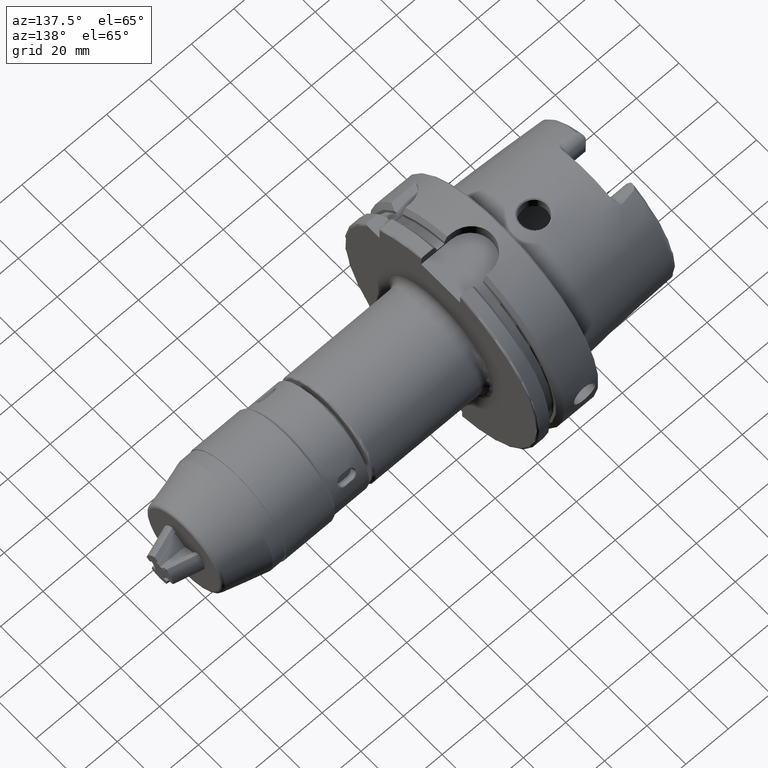
[diagram: clean part render]
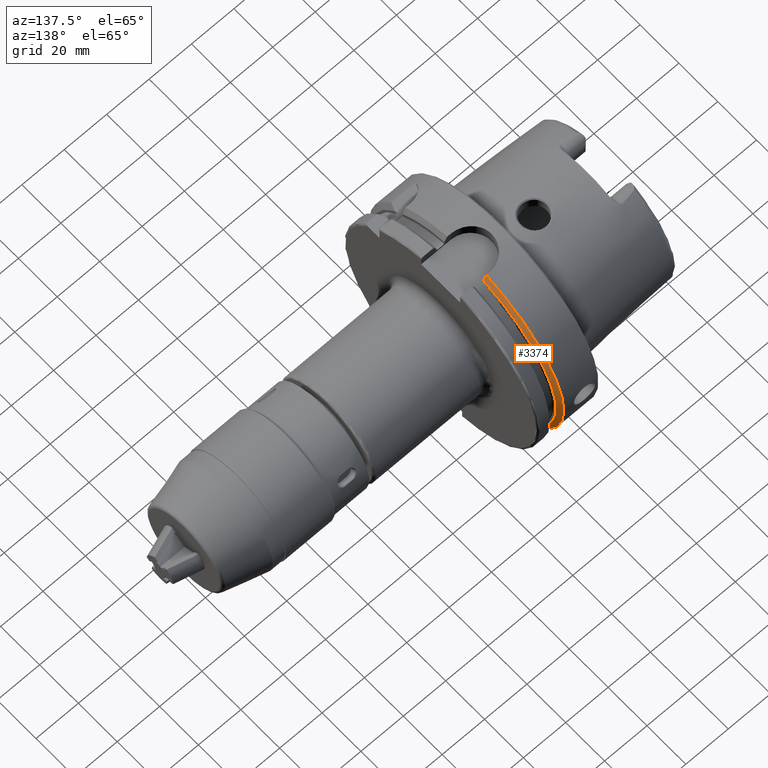
[diagram: same view with one face highlighted and labeled with its STEP entity id]
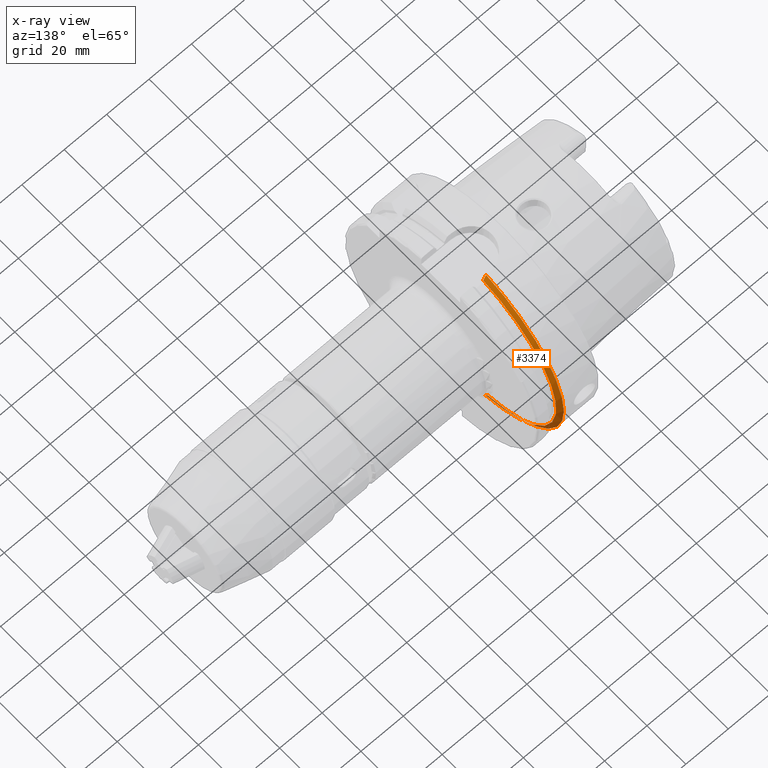
[diagram: x-ray of the same camera — body ghosted, the highlighted face saturated]
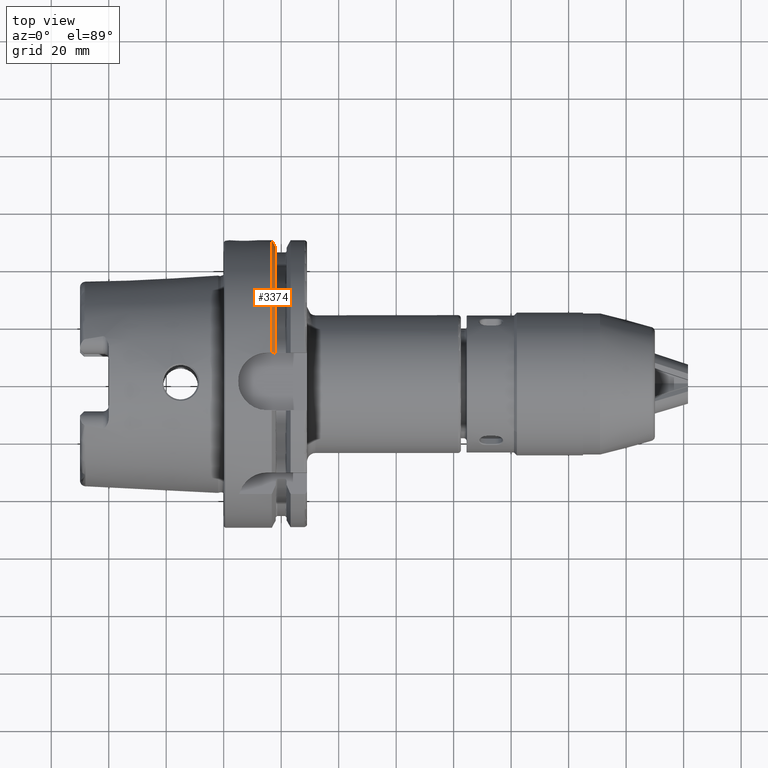
[diagram: same view with one face highlighted and labeled with its STEP entity id]
A machine part, auxiliary view. The second image highlights one B-rep face of the part: STEP entity #3374.
The next image is the same camera in x-ray: the body ghosted, the highlighted face saturated — about 6% of this face is hidden behind the body in this view.
A second angle (top view) of the same face is appended — the face is thin or edge-on in the first view.
In plain terms, the highlighted conical surface has half-angle 60 deg.
Its self-contained STEP definition (entity closure, byte-faithful):
#78=(
BOUNDED_CURVE()
B_SPLINE_CURVE(2,(#6265,#6266,#6267),.UNSPECIFIED.,.F.,.F.)
B_SPLINE_CURVE_WITH_KNOTS((3,3),(0.,0.282923490805558),.UNSPECIFIED.)
CURVE()
GEOMETRIC_REPRESENTATION_ITEM()
RATIONAL_B_SPLINE_CURVE((1.,1.00031934109636,1.))
REPRESENTATION_ITEM('')
);
#83=(
BOUNDED_CURVE()
B_SPLINE_CURVE(2,(#6430,#6431,#6432),.UNSPECIFIED.,.F.,.F.)
B_SPLINE_CURVE_WITH_KNOTS((3,3),(0.,0.281931851964124),.UNSPECIFIED.)
CURVE()
GEOMETRIC_REPRESENTATION_ITEM()
RATIONAL_B_SPLINE_CURVE((1.,1.00031639798907,1.))
REPRESENTATION_ITEM('')
);
#173=CONICAL_SURFACE('',#3834,48.7987976320958,1.0471975511966);
#875=FACE_OUTER_BOUND('',#1089,.T.);
#1089=EDGE_LOOP('',(#2626,#2627,#2628,#2629));
#1294=CIRCLE('',#3784,50.);
#1318=CIRCLE('',#3833,47.5975952641917);
#1546=VERTEX_POINT('',#6146);
#1547=VERTEX_POINT('',#6148);
#1565=VERTEX_POINT('',#6264);
#1590=VERTEX_POINT('',#6426);
#1909=EDGE_CURVE('',#1547,#1546,#1294,.T.);
#1939=EDGE_CURVE('',#1565,#1547,#78,.T.);
#1979=EDGE_CURVE('',#1565,#1590,#1318,.T.);
#1981=EDGE_CURVE('',#1546,#1590,#83,.T.);
#2626=ORIENTED_EDGE('',*,*,#1939,.T.);
#2627=ORIENTED_EDGE('',*,*,#1909,.T.);
#2628=ORIENTED_EDGE('',*,*,#1981,.T.);
#2629=ORIENTED_EDGE('',*,*,#1979,.F.);
#3374=ADVANCED_FACE('',(#875),#173,.T.);
#3784=AXIS2_PLACEMENT_3D('',#6149,#4348,#4349);
#3833=AXIS2_PLACEMENT_3D('',#6427,#4471,#4472);
#3834=AXIS2_PLACEMENT_3D('',#6429,#4474,#4475);
#4348=DIRECTION('center_axis',(1.,0.,0.));
#4349=DIRECTION('ref_axis',(0.,0.,-1.));
#4471=DIRECTION('center_axis',(1.,0.,0.));
#4472=DIRECTION('ref_axis',(0.,0.,-1.));
#4474=DIRECTION('center_axis',(-1.,0.,0.));
#4475=DIRECTION('ref_axis',(0.,1.,0.));
#6146=CARTESIAN_POINT('',(16.7379709790786,10.,48.9897948556636));
#6148=CARTESIAN_POINT('',(16.7379709790786,11.,-48.7749935930288));
#6149=CARTESIAN_POINT('Origin',(16.7379709790786,0.,0.));
#6264=CARTESIAN_POINT('',(18.125,11.,-46.3090819919139));
#6265=CARTESIAN_POINT('Ctrl Pts',(18.125,11.,-46.3090819919139));
#6266=CARTESIAN_POINT('Ctrl Pts',(17.4494711035784,11.,-47.5116880808765));
#6267=CARTESIAN_POINT('Ctrl Pts',(16.7379709790786,11.,-48.7749935930288));
#6426=CARTESIAN_POINT('',(18.125,10.,46.5352670018536));
#6427=CARTESIAN_POINT('Origin',(18.125,0.,0.));
#6429=CARTESIAN_POINT('Origin',(17.4314854895393,0.,0.));
#6430=CARTESIAN_POINT('Ctrl Pts',(16.7379709790786,10.,48.9897948556636));
#6431=CARTESIAN_POINT('Ctrl Pts',(17.4493054275198,10.,47.7323213252028));
#6432=CARTESIAN_POINT('Ctrl Pts',(18.125,10.,46.5352670018536));